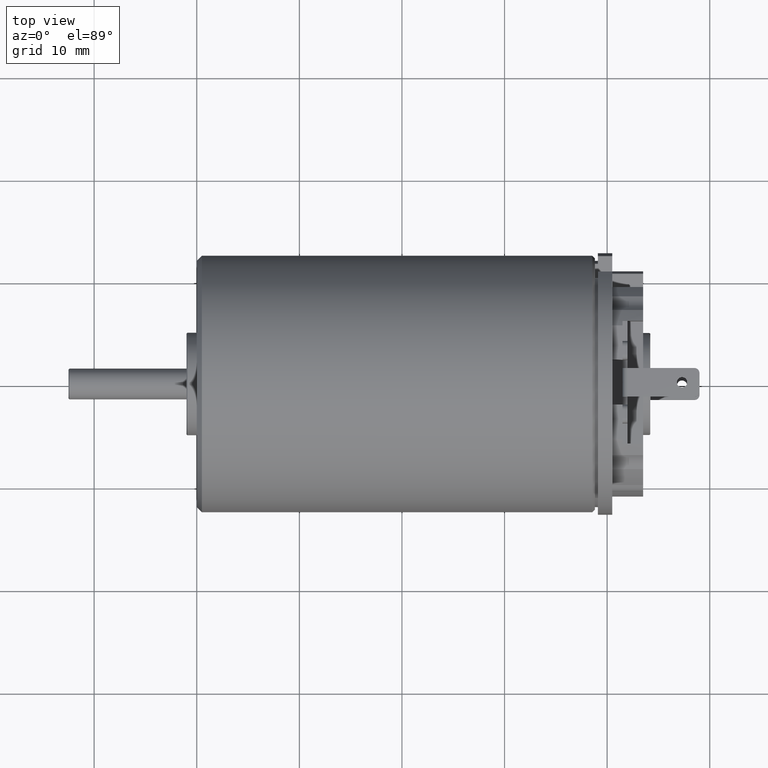
[diagram: clean part render]
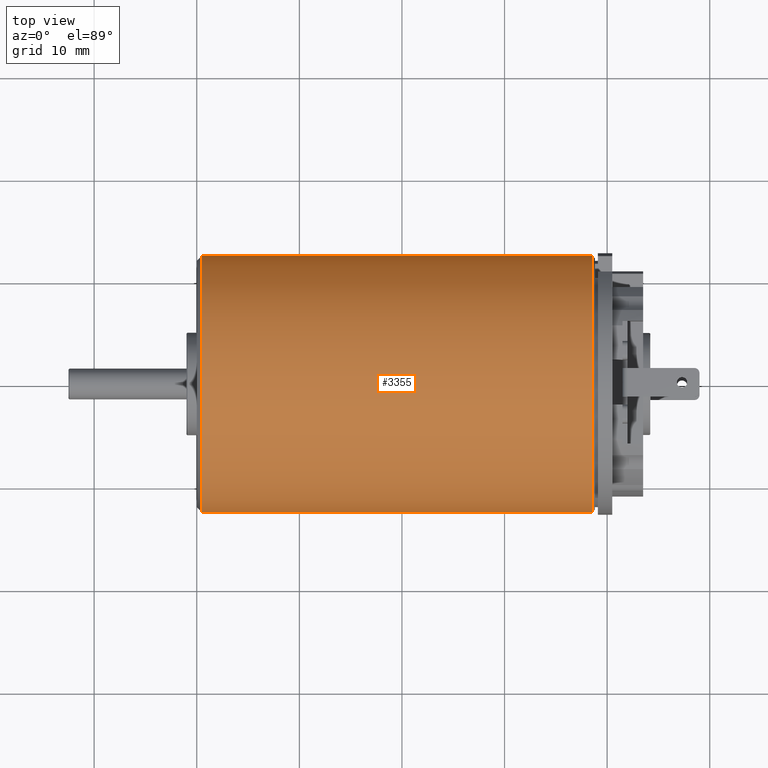
[diagram: same view with one face highlighted and labeled with its STEP entity id]
A machine part, top view. The second image highlights one B-rep face of the part: STEP entity #3355.
In plain terms, the highlighted cylindrical surface (partial cylindrical patch) has radius 12.5 mm, axis along (-1, 0, 0).
Its self-contained STEP definition (entity closure, byte-faithful):
#10=CARTESIAN_POINT('',(5.E-1,0.E0,0.E0));
#11=DIRECTION('',(1.E0,0.E0,0.E0));
#12=DIRECTION('',(0.E0,1.E0,0.E0));
#13=AXIS2_PLACEMENT_3D('',#10,#11,#12);
#19=CARTESIAN_POINT('',(3.854999783242E1,0.E0,0.E0));
#20=DIRECTION('',(-1.E0,0.E0,0.E0));
#21=DIRECTION('',(0.E0,-1.E0,0.E0));
#22=AXIS2_PLACEMENT_3D('',#19,#20,#21);
#24=DIRECTION('',(-1.E0,3.995624997394E-8,1.734572483085E-11));
#25=VECTOR('',#24,3.805000152052E1);
#26=CARTESIAN_POINT('',(3.855000152052E1,-1.250000152034E1,
-6.600076317459E-10));
#27=LINE('',#26,#25);
#28=DIRECTION('',(-1.E0,-3.995624992725E-8,-1.734583206E-11));
#29=VECTOR('',#28,3.805000152052E1);
#30=CARTESIAN_POINT('',(3.855000152052E1,1.250000152034E1,6.600089362578E-10));
#31=LINE('',#30,#29);
#3095=CARTESIAN_POINT('',(5.E-1,1.25E1,0.E0));
#3097=VERTEX_POINT('',#3095);
#3099=CARTESIAN_POINT('',(5.E-1,-1.25E1,0.E0));
#3101=VERTEX_POINT('',#3099);
#3103=CARTESIAN_POINT('',(3.854999783242E1,1.25E1,0.E0));
#3104=CARTESIAN_POINT('',(3.854999783242E1,-1.25E1,0.E0));
#3105=VERTEX_POINT('',#3103);
#3106=VERTEX_POINT('',#3104);
#3341=CARTESIAN_POINT('',(4.074E1,0.E0,0.E0));
#3342=DIRECTION('',(-1.E0,0.E0,0.E0));
#3343=DIRECTION('',(0.E0,1.E0,0.E0));
#3344=AXIS2_PLACEMENT_3D('',#3341,#3342,#3343);
#3345=CYLINDRICAL_SURFACE('',#3344,1.25E1);
#3347=ORIENTED_EDGE('',*,*,#3346,.F.);
#3349=ORIENTED_EDGE('',*,*,#3348,.T.);
#3350=ORIENTED_EDGE('',*,*,#3333,.F.);
#3352=ORIENTED_EDGE('',*,*,#3351,.F.);
#3353=EDGE_LOOP('',(#3347,#3349,#3350,#3352));
#3354=FACE_OUTER_BOUND('',#3353,.F.);
#3355=ADVANCED_FACE('',(#3354),#3345,.T.);
#14=CIRCLE('',#13,1.25E1);
#23=CIRCLE('',#22,1.25E1);
#3333=EDGE_CURVE('',#3097,#3101,#14,.T.);
#3346=EDGE_CURVE('',#3106,#3105,#23,.T.);
#3348=EDGE_CURVE('',#3106,#3101,#27,.T.);
#3351=EDGE_CURVE('',#3105,#3097,#31,.T.);